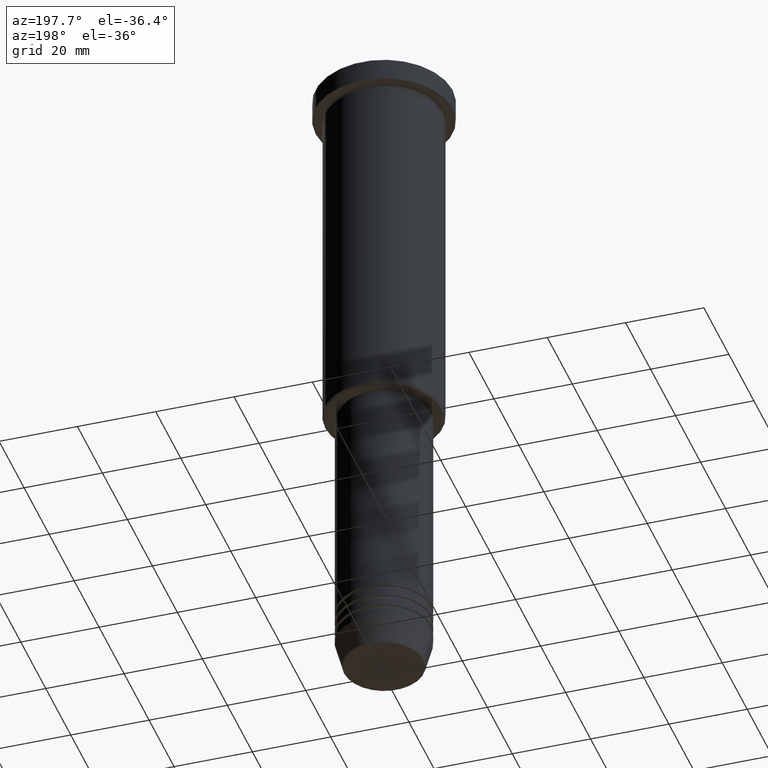
[diagram: clean part render]
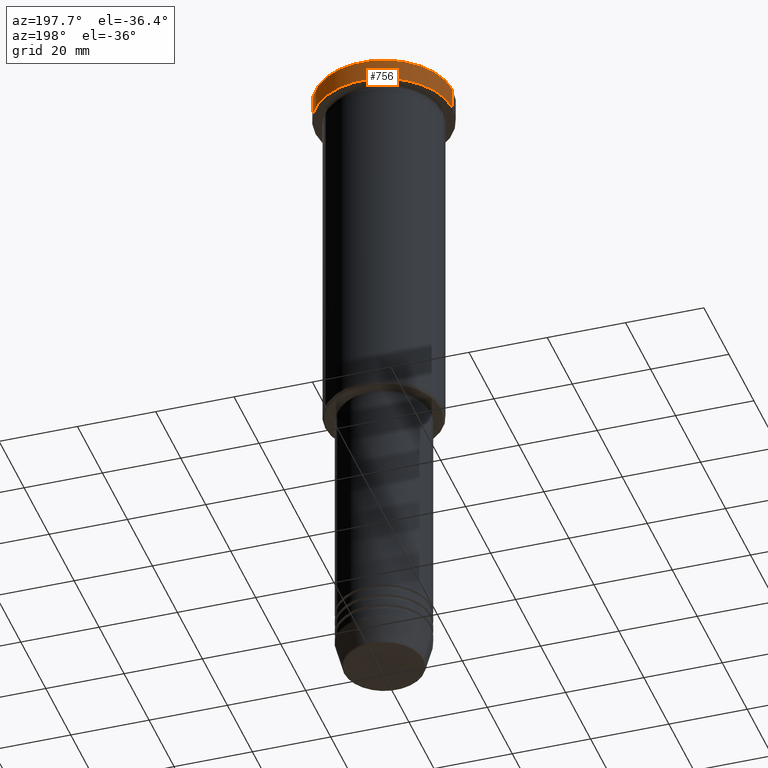
[diagram: same view with one face highlighted and labeled with its STEP entity id]
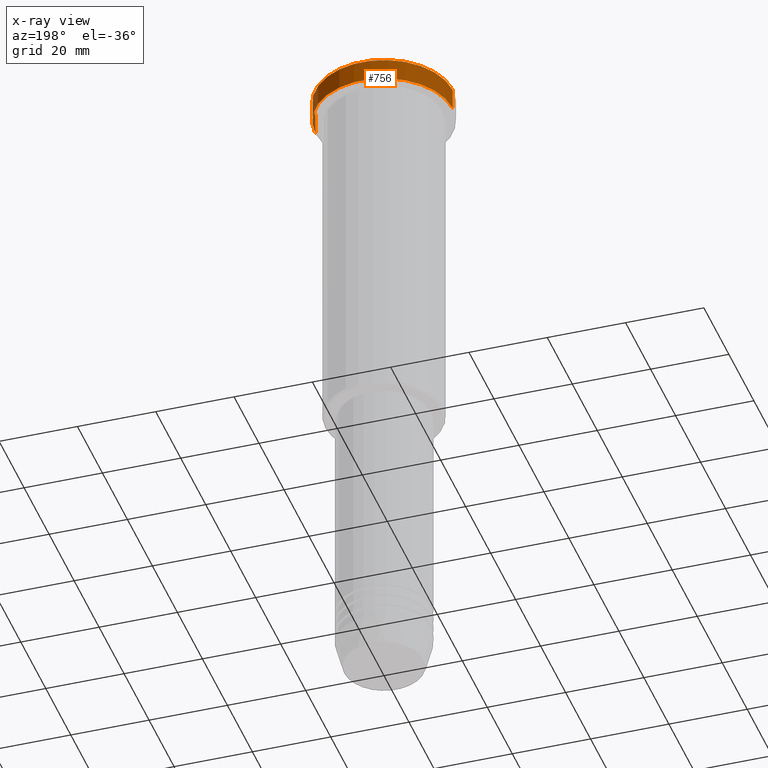
[diagram: x-ray of the same camera — body ghosted, the highlighted face saturated]
A machine part, auxiliary view. The second image highlights one B-rep face of the part: STEP entity #756.
The next image is the same camera in x-ray: the body ghosted, the highlighted face saturated — about 0% of this face is hidden behind the body in this view.
In plain terms, the highlighted cylindrical surface (partial cylindrical patch) has radius 17.5 mm, axis along (-0, -0, 1).
Its self-contained STEP definition (entity closure, byte-faithful):
#44 = CARTESIAN_POINT ( 'NONE',  ( 17.50000000000000000, 0.000000000000000000, -0.4999999999999727995 ) ) ;
#70 = ORIENTED_EDGE ( 'NONE', *, *, #77, .T. ) ;
#73 = CARTESIAN_POINT ( 'NONE',  ( -17.50000000000000000, 2.143131898507868248E-15, -5.999999999999995559 ) ) ;
#77 = EDGE_CURVE ( 'NONE', #562, #156, #855, .T. ) ;
#102 = CARTESIAN_POINT ( 'NONE',  ( -17.50000000000000000, 2.143131898507868248E-15, -0.4999999999999727995 ) ) ;
#156 = VERTEX_POINT ( 'NONE', #102 ) ;
#183 = EDGE_LOOP ( 'NONE', ( #446, #70, #1173, #1010 ) ) ;
#210 = CARTESIAN_POINT ( 'NONE',  ( 17.50000000000000000, 0.000000000000000000, 0.000000000000000000 ) ) ;
#248 = CYLINDRICAL_SURFACE ( 'NONE', #886, 17.50000000000000000 ) ;
#255 = CARTESIAN_POINT ( 'NONE',  ( 17.50000000000000000, 0.000000000000000000, -5.999999999999995559 ) ) ;
#320 = AXIS2_PLACEMENT_3D ( 'NONE', #811, #994, #538 ) ;
#358 = DIRECTION ( 'NONE',  ( 1.000000000000000000, 0.000000000000000000, 0.000000000000000000 ) ) ;
#363 = CIRCLE ( 'NONE', #320, 17.50000000000000000 ) ;
#399 = EDGE_CURVE ( 'NONE', #687, #562, #363, .T. ) ;
#446 = ORIENTED_EDGE ( 'NONE', *, *, #399, .T. ) ;
#470 = VECTOR ( 'NONE', #568, 1000.000000000000000 ) ;
#538 = DIRECTION ( 'NONE',  ( 1.000000000000000000, 0.000000000000000000, 0.000000000000000000 ) ) ;
#562 = VERTEX_POINT ( 'NONE', #73 ) ;
#568 = DIRECTION ( 'NONE',  ( -0.000000000000000000, -0.000000000000000000, 1.000000000000000000 ) ) ;
#600 = CARTESIAN_POINT ( 'NONE',  ( 0.000000000000000000, 0.000000000000000000, 0.000000000000000000 ) ) ;
#618 = EDGE_CURVE ( 'NONE', #156, #1064, #899, .T. ) ;
#627 = LINE ( 'NONE', #210, #470 ) ;
#687 = VERTEX_POINT ( 'NONE', #255 ) ;
#700 = DIRECTION ( 'NONE',  ( 1.000000000000000000, 0.000000000000000000, 0.000000000000000000 ) ) ;
#753 = CARTESIAN_POINT ( 'NONE',  ( 0.000000000000000000, 0.000000000000000000, -0.4999999999999727995 ) ) ;
#756 = ADVANCED_FACE ( 'NONE', ( #777 ), #248, .T. ) ;
#777 = FACE_OUTER_BOUND ( 'NONE', #183, .T. ) ;
#811 = CARTESIAN_POINT ( 'NONE',  ( 0.000000000000000000, 0.000000000000000000, -5.999999999999995559 ) ) ;
#855 = LINE ( 'NONE', #1072, #1137 ) ;
#862 = DIRECTION ( 'NONE',  ( -0.000000000000000000, -0.000000000000000000, 1.000000000000000000 ) ) ;
#874 = DIRECTION ( 'NONE',  ( -0.000000000000000000, -0.000000000000000000, 1.000000000000000000 ) ) ;
#886 = AXIS2_PLACEMENT_3D ( 'NONE', #600, #874, #358 ) ;
#899 = CIRCLE ( 'NONE', #1000, 17.50000000000000000 ) ;
#934 = DIRECTION ( 'NONE',  ( 0.000000000000000000, 0.000000000000000000, -1.000000000000000000 ) ) ;
#968 = EDGE_CURVE ( 'NONE', #687, #1064, #627, .T. ) ;
#994 = DIRECTION ( 'NONE',  ( -0.000000000000000000, -0.000000000000000000, 1.000000000000000000 ) ) ;
#1000 = AXIS2_PLACEMENT_3D ( 'NONE', #753, #934, #700 ) ;
#1010 = ORIENTED_EDGE ( 'NONE', *, *, #968, .F. ) ;
#1064 = VERTEX_POINT ( 'NONE', #44 ) ;
#1072 = CARTESIAN_POINT ( 'NONE',  ( -17.50000000000000000, 2.143131898507868248E-15, 0.000000000000000000 ) ) ;
#1137 = VECTOR ( 'NONE', #862, 1000.000000000000000 ) ;
#1173 = ORIENTED_EDGE ( 'NONE', *, *, #618, .T. ) ;